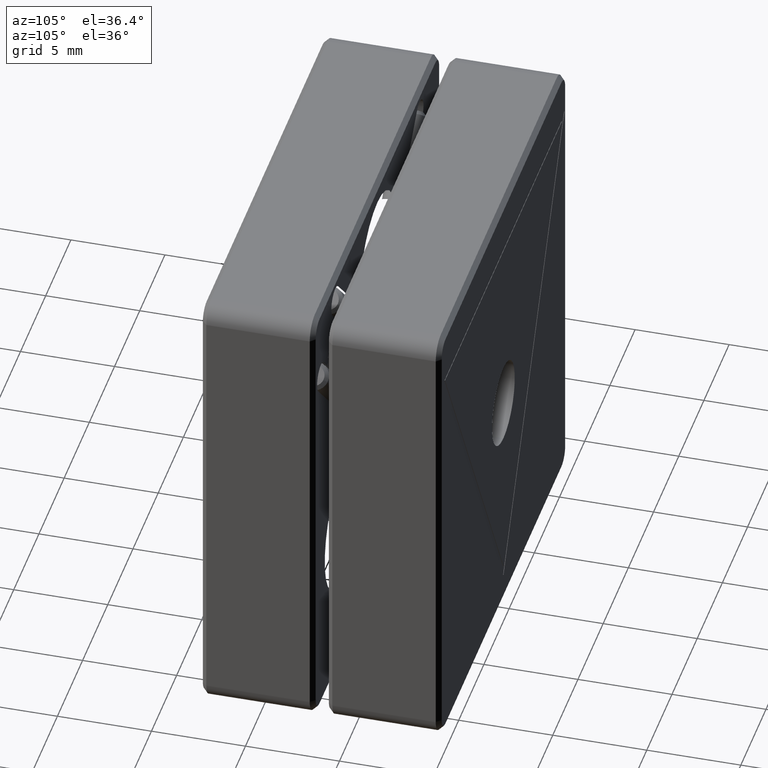
[diagram: clean part render]
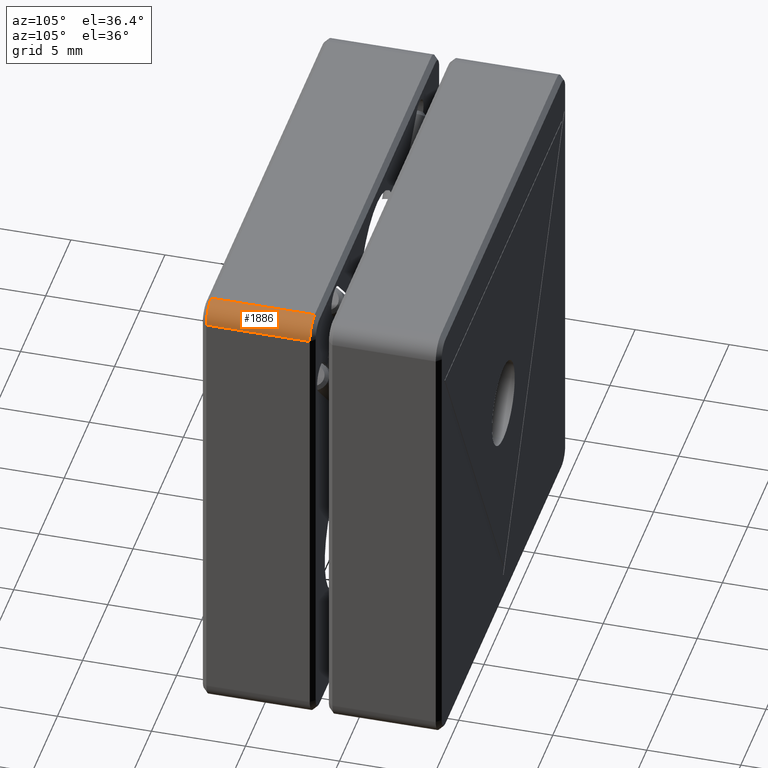
[diagram: same view with one face highlighted and labeled with its STEP entity id]
A machine part, auxiliary view. The second image highlights one B-rep face of the part: STEP entity #1886.
In plain terms, the highlighted cylindrical surface (edge-blend (fillet) strip) has radius 1 mm, axis along (0, -1, 0).
Its self-contained STEP definition (entity closure, byte-faithful):
#25 = CARTESIAN_POINT ( 'NONE',  ( 12.50000000000000711, 2.750000000000000000, 11.50000000000000178 ) ) ;
#28 = EDGE_CURVE ( 'NONE', #2700, #253, #1972, .T. ) ;
#89 = EDGE_CURVE ( 'NONE', #2736, #476, #812, .T. ) ;
#253 = VERTEX_POINT ( 'NONE', #2708 ) ;
#256 = DIRECTION ( 'NONE',  ( 0.0000000000000000000, -1.000000000000000000, 0.0000000000000000000 ) ) ;
#476 = VERTEX_POINT ( 'NONE', #3370 ) ;
#584 = DIRECTION ( 'NONE',  ( -0.0000000000000000000, 1.000000000000000000, -0.0000000000000000000 ) ) ;
#630 = DIRECTION ( 'NONE',  ( 0.0000000000000000000, 0.0000000000000000000, 1.000000000000000000 ) ) ;
#811 = EDGE_CURVE ( 'NONE', #2736, #253, #3241, .T. ) ;
#812 = LINE ( 'NONE', #2688, #1200 ) ;
#1022 = AXIS2_PLACEMENT_3D ( 'NONE', #1906, #256, #1065 ) ;
#1049 = CARTESIAN_POINT ( 'NONE',  ( 12.50000000000000711, 3.000000000000000000, 11.50000000000000178 ) ) ;
#1065 = DIRECTION ( 'NONE',  ( 0.0000000000000000000, 0.0000000000000000000, -1.000000000000000000 ) ) ;
#1084 = CARTESIAN_POINT ( 'NONE',  ( 11.50000000000000711, 2.750000000000000000, 11.50000000000000178 ) ) ;
#1092 = DIRECTION ( 'NONE',  ( 0.0000000000000000000, -1.000000000000000000, 0.0000000000000000000 ) ) ;
#1200 = VECTOR ( 'NONE', #584, 1000.000000000000000 ) ;
#1365 = CARTESIAN_POINT ( 'NONE',  ( 11.50000000000000711, -2.750000000000000000, 12.50000000000000178 ) ) ;
#1570 = CIRCLE ( 'NONE', #2302, 0.9999999999999991118 ) ;
#1737 = ORIENTED_EDGE ( 'NONE', *, *, #1884, .T. ) ;
#1805 = VECTOR ( 'NONE', #2072, 1000.000000000000000 ) ;
#1811 = ORIENTED_EDGE ( 'NONE', *, *, #811, .T. ) ;
#1884 = EDGE_CURVE ( 'NONE', #2700, #476, #1570, .T. ) ;
#1886 = ADVANCED_FACE ( 'NONE', ( #2653 ), #2819, .T. ) ;
#1905 = ORIENTED_EDGE ( 'NONE', *, *, #89, .F. ) ;
#1906 = CARTESIAN_POINT ( 'NONE',  ( 11.50000000000000711, 3.000000000000000000, 11.50000000000000178 ) ) ;
#1964 = CARTESIAN_POINT ( 'NONE',  ( 11.50000000000000711, -2.750000000000000000, 11.50000000000000178 ) ) ;
#1972 = LINE ( 'NONE', #1049, #1805 ) ;
#1975 = DIRECTION ( 'NONE',  ( 0.0000000000000000000, 1.000000000000000000, 0.0000000000000000000 ) ) ;
#2066 = EDGE_LOOP ( 'NONE', ( #1905, #1811, #2341, #1737 ) ) ;
#2072 = DIRECTION ( 'NONE',  ( 0.0000000000000000000, -1.000000000000000000, 0.0000000000000000000 ) ) ;
#2302 = AXIS2_PLACEMENT_3D ( 'NONE', #1084, #1092, #2665 ) ;
#2341 = ORIENTED_EDGE ( 'NONE', *, *, #28, .F. ) ;
#2653 = FACE_OUTER_BOUND ( 'NONE', #2066, .T. ) ;
#2665 = DIRECTION ( 'NONE',  ( 0.0000000000000000000, 0.0000000000000000000, 1.000000000000000000 ) ) ;
#2688 = CARTESIAN_POINT ( 'NONE',  ( 11.50000000000000711, 3.000000000000000000, 12.50000000000000178 ) ) ;
#2700 = VERTEX_POINT ( 'NONE', #25 ) ;
#2708 = CARTESIAN_POINT ( 'NONE',  ( 12.50000000000000711, -2.750000000000000000, 11.50000000000000178 ) ) ;
#2736 = VERTEX_POINT ( 'NONE', #1365 ) ;
#2819 = CYLINDRICAL_SURFACE ( 'NONE', #1022, 0.9999999999999991118 ) ;
#3005 = AXIS2_PLACEMENT_3D ( 'NONE', #1964, #1975, #630 ) ;
#3241 = CIRCLE ( 'NONE', #3005, 0.9999999999999991118 ) ;
#3370 = CARTESIAN_POINT ( 'NONE',  ( 11.50000000000000711, 2.750000000000000000, 12.50000000000000178 ) ) ;